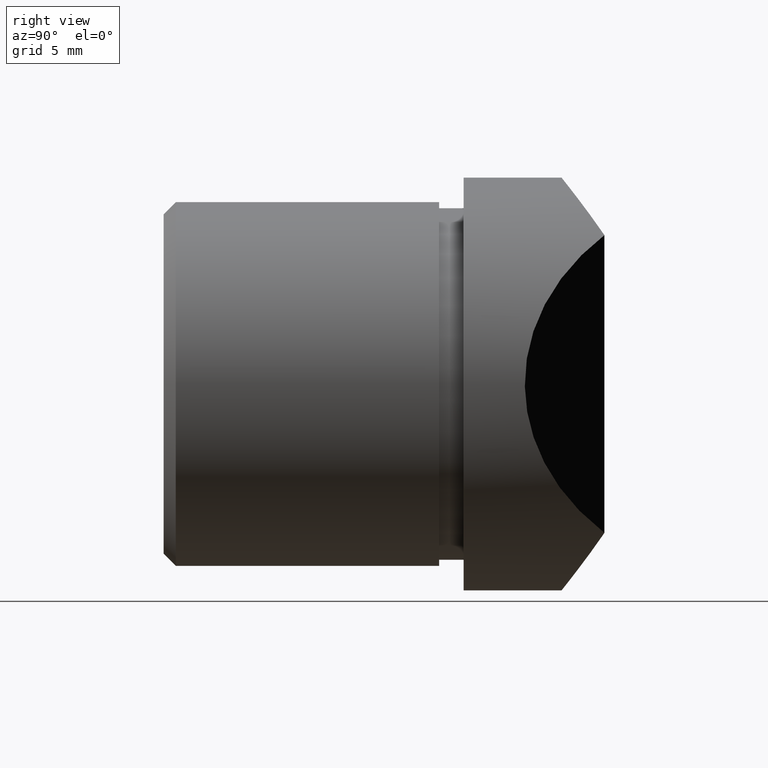
[diagram: clean part render]
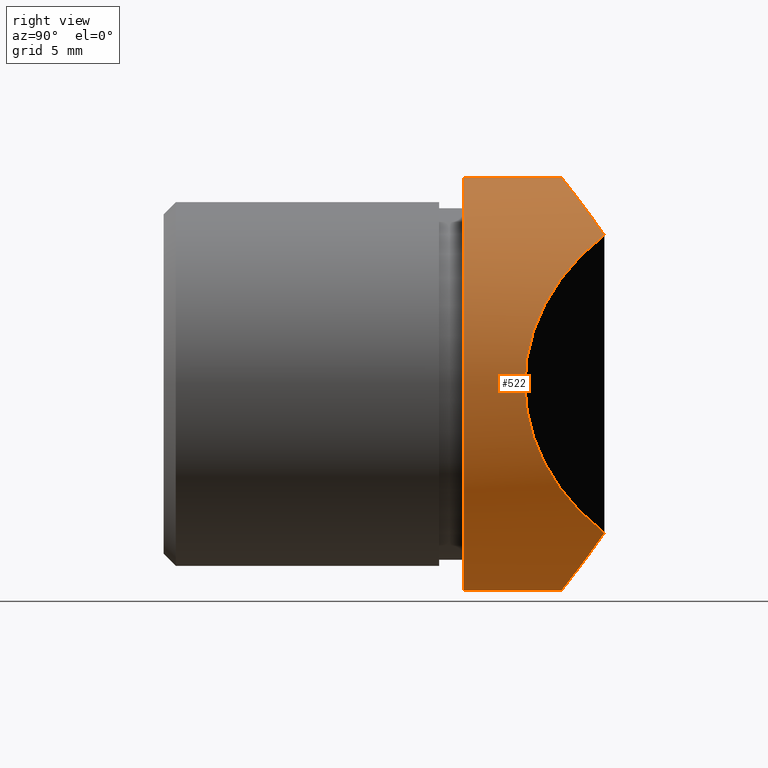
[diagram: same view with one face highlighted and labeled with its STEP entity id]
A machine part, right view. The second image highlights one B-rep face of the part: STEP entity #522.
In plain terms, the highlighted cylindrical surface (partial cylindrical patch) has radius 16.85 mm, axis along (-0, -1, -0).
Its self-contained STEP definition (entity closure, byte-faithful):
#465 = CARTESIAN_POINT ( 'NONE',  ( 6.954027455257052500, 9.166151868347517600, -15.35756831525763600 ) ) ;
#522 = ADVANCED_FACE ( 'NONE', ( #530 ), #7547, .T. ) ;
#530 = FACE_OUTER_BOUND ( 'NONE', #4067, .T. ) ;
#574 = VECTOR ( 'NONE', #5080, 1000.000000000000000 ) ;
#679 = EDGE_CURVE ( 'NONE', #4153, #11976, #12255, .T. ) ;
#696 =( BOUNDED_CURVE ( )  B_SPLINE_CURVE ( 3, ( #7260, #6261, #2467, #9154 ),
 .UNSPECIFIED., .F., .F. ) 
 B_SPLINE_CURVE_WITH_KNOTS ( ( 4, 4 ),
 ( 5.477313689855879600, 7.089056924503292800 ),
 .UNSPECIFIED. ) 
 CURVE ( )  GEOMETRIC_REPRESENTATION_ITEM ( )  RATIONAL_B_SPLINE_CURVE ( ( 1.000000000000000000, 0.7949884555609381100, 0.7949884555609381100, 1.000000000000000000 ) ) 
 REPRESENTATION_ITEM ( '' )  );
#761 = CARTESIAN_POINT ( 'NONE',  ( 8.382171956459762500, 9.720913237572885300, 14.62682323743940000 ) ) ;
#837 = CARTESIAN_POINT ( 'NONE',  ( 2.221765782025834700, 8.114902728246960400, -16.70522280876590000 ) ) ;
#854 = LINE ( 'NONE', #3131, #574 ) ;
#1026 = CARTESIAN_POINT ( 'NONE',  ( 0.0000000000000000000, 0.0000000000000000000, 0.0000000000000000000 ) ) ;
#1280 = CARTESIAN_POINT ( 'NONE',  ( 11.66833321430271700, 11.50000000000000000, -12.15617127223863900 ) ) ;
#1403 = CARTESIAN_POINT ( 'NONE',  ( 7.441808880585147900, 9.342674894708011400, -15.12687285382948900 ) ) ;
#1553 = ORIENTED_EDGE ( 'NONE', *, *, #679, .T. ) ;
#1720 = CARTESIAN_POINT ( 'NONE',  ( 6.954719929048507300, 9.166418277609444900, 15.35721897121763700 ) ) ;
#1975 = DIRECTION ( 'NONE',  ( 0.0000000000000000000, 0.0000000000000000000, 1.000000000000000000 ) ) ;
#2238 = CARTESIAN_POINT ( 'NONE',  ( 8.376779636775710400, 9.718638582755177800, -14.62984499808454700 ) ) ;
#2467 = CARTESIAN_POINT ( 'NONE',  ( 19.02263816828683600, 2.274593547225932900, 5.097001173290138400 ) ) ;
#2669 = CARTESIAN_POINT ( 'NONE',  ( 4.426395000947989500, 8.438236604871885800, 16.29575048062572100 ) ) ;
#2863 = CARTESIAN_POINT ( 'NONE',  ( 11.66833321430271700, 11.50000000000000000, -12.15617127223863900 ) ) ;
#3131 = CARTESIAN_POINT ( 'NONE',  ( 0.0000000000000000000, 11.50000000000000000, -16.85000000000000100 ) ) ;
#3192 = CARTESIAN_POINT ( 'NONE',  ( 11.30028767924798300, 11.25737412762401300, -12.50944680981373300 ) ) ;
#3323 = DIRECTION ( 'NONE',  ( -0.0000000000000000000, -1.000000000000000000, -0.0000000000000000000 ) ) ;
#3636 = CARTESIAN_POINT ( 'NONE',  ( 2.798270431921981800, 8.183638387568231900, 16.61838173325768500 ) ) ;
#4067 = EDGE_LOOP ( 'NONE', ( #8115, #8499, #5607, #4443, #1553, #10089 ) ) ;
#4153 = VERTEX_POINT ( 'NONE', #8427 ) ;
#4443 = ORIENTED_EDGE ( 'NONE', *, *, #10844, .F. ) ;
#4568 = CARTESIAN_POINT ( 'NONE',  ( 11.66833321430271700, 11.50000000000000000, 12.15617127223863700 ) ) ;
#4611 = CARTESIAN_POINT ( 'NONE',  ( 1.963307779043820500, 8.089222579483657000, 16.73761386992846700 ) ) ;
#4648 = CARTESIAN_POINT ( 'NONE',  ( 3.839038926912367200E-020, 8.000000000000000000, -16.85000000000000100 ) ) ;
#5080 = DIRECTION ( 'NONE',  ( -0.0000000000000000000, -1.000000000000000000, -0.0000000000000000000 ) ) ;
#5182 = CARTESIAN_POINT ( 'NONE',  ( 3.051962071017731300, 8.219007705481645900, -16.57364411922099700 ) ) ;
#5223 = CARTESIAN_POINT ( 'NONE',  ( 5.459437036859337200, 8.688324727538553600, -15.97750471336701100 ) ) ;
#5246 = EDGE_CURVE ( 'NONE', #8238, #7536, #10168, .T. ) ;
#5530 = CARTESIAN_POINT ( 'NONE',  ( 10.93066277212949300, 11.01370708917405700, 12.86423833783486600 ) ) ;
#5570 = CARTESIAN_POINT ( 'NONE',  ( 0.5593655801729050500, 8.000000000000001800, 16.85000000000000100 ) ) ;
#5574 = DIRECTION ( 'NONE',  ( 0.0000000000000000000, 0.0000000000000000000, -1.000000000000000000 ) ) ;
#5604 = CARTESIAN_POINT ( 'NONE',  ( 1.113085876821781100, 8.021935049766723200, -16.82242735407928400 ) ) ;
#5607 = ORIENTED_EDGE ( 'NONE', *, *, #9172, .T. ) ;
#5861 = VERTEX_POINT ( 'NONE', #4568 ) ;
#5864 = EDGE_CURVE ( 'NONE', #5861, #8238, #9789, .T. ) ;
#6261 = CARTESIAN_POINT ( 'NONE',  ( 19.02263816828683600, 2.274593547225931500, -5.097001173290142800 ) ) ;
#6493 = CARTESIAN_POINT ( 'NONE',  ( 8.832442772522050200, 9.921516247150155000, 14.35895073188218900 ) ) ;
#6579 = CARTESIAN_POINT ( 'NONE',  ( 1.944850209970604200, 8.087565122370486700, -16.73970394672172500 ) ) ;
#6755 = CARTESIAN_POINT ( 'NONE',  ( 2.063529856563290200E-015, 0.0000000000000000000, 16.85000000000000100 ) ) ;
#6761 = CARTESIAN_POINT ( 'NONE',  ( 0.0000000000000000000, 0.0000000000000000000, -16.85000000000000100 ) ) ;
#6987 = EDGE_CURVE ( 'NONE', #11976, #5861, #696, .T. ) ;
#7155 = CARTESIAN_POINT ( 'NONE',  ( 2.774912694137612300, 8.180546398886051000, -16.62229141305756700 ) ) ;
#7260 = CARTESIAN_POINT ( 'NONE',  ( 11.66833321430271700, 11.50000000000000000, -12.15617127223863900 ) ) ;
#7418 = AXIS2_PLACEMENT_3D ( 'NONE', #1026, #7724, #1975 ) ;
#7464 = CARTESIAN_POINT ( 'NONE',  ( 7.444061249680932400, 9.343475129901943200, 15.12582945950258700 ) ) ;
#7536 = VERTEX_POINT ( 'NONE', #6755 ) ;
#7547 = CYLINDRICAL_SURFACE ( 'NONE', #9592, 16.85000000000000100 ) ;
#7596 = CARTESIAN_POINT ( 'NONE',  ( 0.0000000000000000000, 11.50000000000000000, 0.0000000000000000000 ) ) ;
#7669 = VECTOR ( 'NONE', #3323, 1000.000000000000000 ) ;
#7724 = DIRECTION ( 'NONE',  ( 0.0000000000000000000, 1.000000000000000000, 0.0000000000000000000 ) ) ;
#7975 = CARTESIAN_POINT ( 'NONE',  ( 8.826524878610982200, 9.918801087793454500, -14.36259473017705300 ) ) ;
#8115 = ORIENTED_EDGE ( 'NONE', *, *, #5864, .T. ) ;
#8204 = CIRCLE ( 'NONE', #7418, 16.85000000000000100 ) ;
#8238 = VERTEX_POINT ( 'NONE', #11336 ) ;
#8393 = CARTESIAN_POINT ( 'NONE',  ( 5.463020165881269800, 8.689380449533064900, 15.97614239899294500 ) ) ;
#8427 = CARTESIAN_POINT ( 'NONE',  ( 3.839038926912367200E-020, 8.000000000000000000, -16.85000000000000100 ) ) ;
#8499 = ORIENTED_EDGE ( 'NONE', *, *, #5246, .T. ) ;
#8536 = DIRECTION ( 'NONE',  ( -0.0000000000000000000, -1.000000000000000000, -0.0000000000000000000 ) ) ;
#8924 = CARTESIAN_POINT ( 'NONE',  ( 9.693421539437542500, 10.33973086661852900, -13.79236193241812100 ) ) ;
#9154 = CARTESIAN_POINT ( 'NONE',  ( 11.66833321430271700, 11.50000000000000000, 12.15617127223863700 ) ) ;
#9172 = EDGE_CURVE ( 'NONE', #7536, #10736, #8204, .T. ) ;
#9361 = CARTESIAN_POINT ( 'NONE',  ( 3.072084880941552400, 8.221975033787819200, 16.56988734908123500 ) ) ;
#9592 = AXIS2_PLACEMENT_3D ( 'NONE', #7596, #8536, #5574 ) ;
#9789 = B_SPLINE_CURVE_WITH_KNOTS ( 'NONE', 3,
 ( #11241, #5530, #12222, #6493, #761, #7464, #1720, #8393, #2669, #9361, #3636, #10306, #4611, #11287, #5570, #12264 ),
 .UNSPECIFIED., .F., .F.,
 ( 4, 2, 2, 2, 2, 2, 2, 4 ),
 ( 0.0000000000000000000, 0.003357487541315620900, 0.005036231311973431000, 0.006714975082631240200, 0.01007246262394686000, 0.01091183450927576600, 0.01175120639460467400, 0.01342995016526248400 ),
 .UNSPECIFIED. ) ;
#10014 = CARTESIAN_POINT ( 'NONE',  ( 2.063529856563290200E-015, 11.50000000000000000, 16.85000000000000100 ) ) ;
#10089 = ORIENTED_EDGE ( 'NONE', *, *, #6987, .T. ) ;
#10168 = LINE ( 'NONE', #10014, #7669 ) ;
#10306 = CARTESIAN_POINT ( 'NONE',  ( 2.244473573864685700, 8.117303037540775500, 16.70219348524812400 ) ) ;
#10736 = VERTEX_POINT ( 'NONE', #6761 ) ;
#10844 = EDGE_CURVE ( 'NONE', #4153, #10736, #854, .T. ) ;
#10885 = CARTESIAN_POINT ( 'NONE',  ( 10.91404169258563400, 11.01930390086013600, -12.84797404196564900 ) ) ;
#10927 = CARTESIAN_POINT ( 'NONE',  ( 4.417867776318694900, 8.435929911501515800, -16.29869241035226300 ) ) ;
#11241 = CARTESIAN_POINT ( 'NONE',  ( 11.66833321430271700, 11.50000000000000000, 12.15617127223863700 ) ) ;
#11287 = CARTESIAN_POINT ( 'NONE',  ( 1.120098804003757800, 8.022101577242935400, 16.82221925447330700 ) ) ;
#11322 = CARTESIAN_POINT ( 'NONE',  ( 0.5572216262888831700, 8.000000000000001800, -16.85000000000000500 ) ) ;
#11336 = CARTESIAN_POINT ( 'NONE',  ( 2.063491466163508000E-015, 7.999999999999998200, 16.85000000000000100 ) ) ;
#11918 = CARTESIAN_POINT ( 'NONE',  ( 10.11056377635891800, 10.56051189434227000, -13.48937519586060000 ) ) ;
#11976 = VERTEX_POINT ( 'NONE', #2863 ) ;
#12222 = CARTESIAN_POINT ( 'NONE',  ( 10.13206265781729900, 10.55303695361751800, 13.50332744548740700 ) ) ;
#12255 = B_SPLINE_CURVE_WITH_KNOTS ( 'NONE', 3,
 ( #4648, #11322, #5604, #6579, #837, #7155, #5182, #10927, #5223, #465, #1403, #2238, #7975, #8924, #11918, #10885, #3192, #1280 ),
 .UNSPECIFIED., .F., .F.,
 ( 4, 2, 2, 2, 2, 2, 2, 2, 4 ),
 ( 0.01342995016526248600, 0.01510225959431089900, 0.01593841430883510500, 0.01677456902335931100, 0.02011918788145613700, 0.02179149731050455300, 0.02346380673955296400, 0.02513611616860137900, 0.02680842559764979100 ),
 .UNSPECIFIED. ) ;
#12264 = CARTESIAN_POINT ( 'NONE',  ( 2.063491466163508000E-015, 7.999999999999998200, 16.85000000000000100 ) ) ;